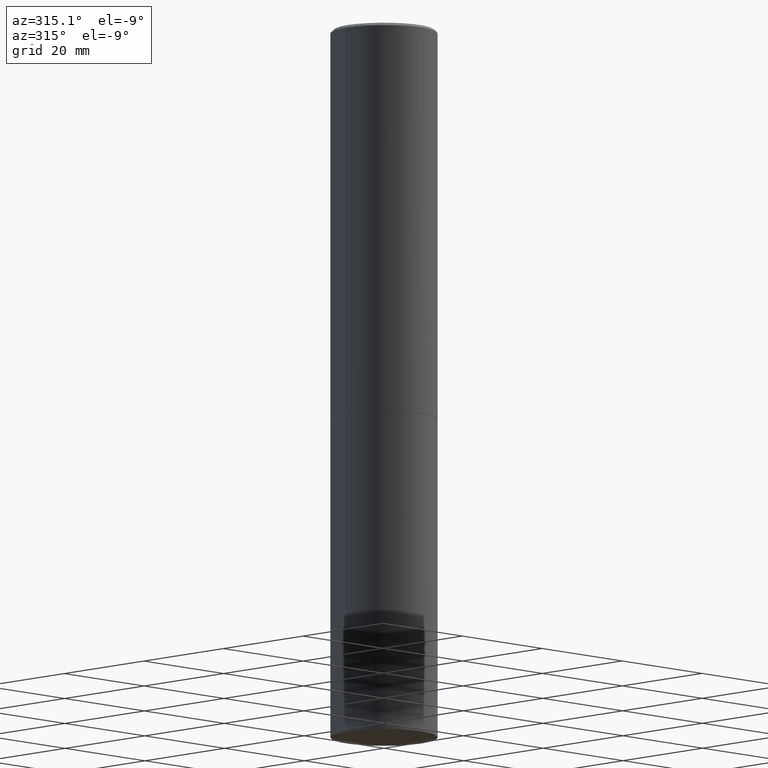
[diagram: clean part render]
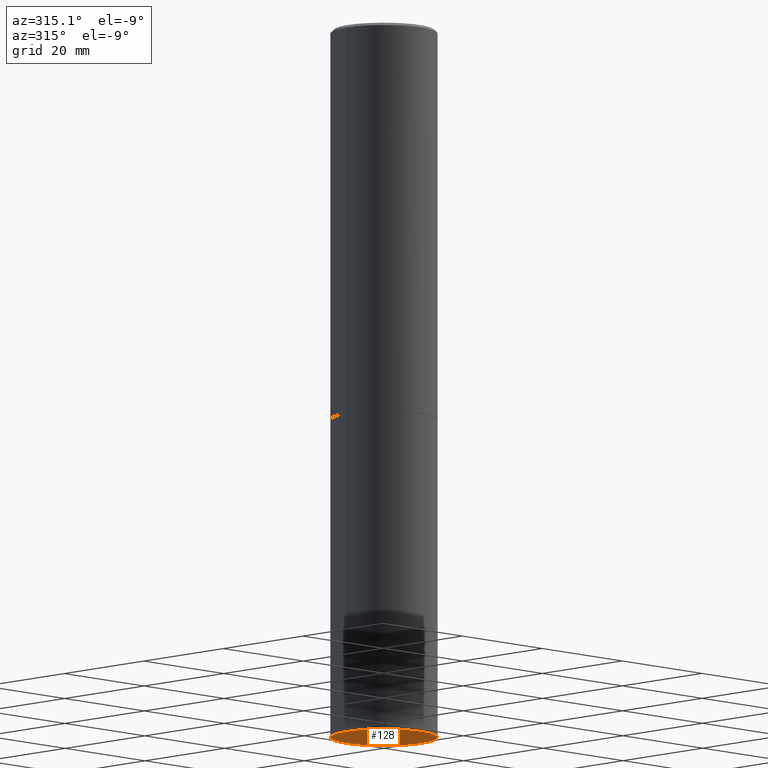
[diagram: same view with one face highlighted and labeled with its STEP entity id]
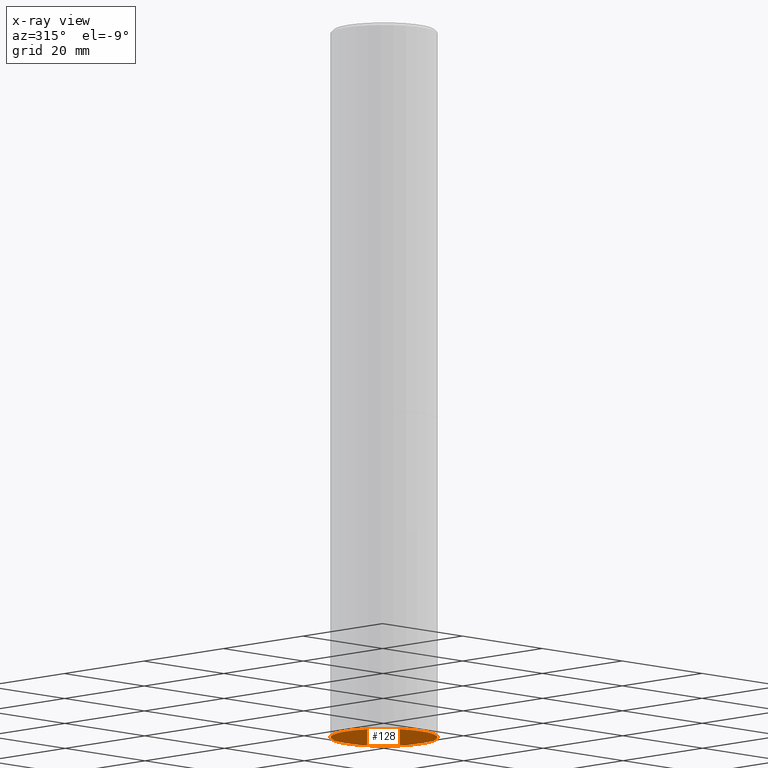
[diagram: x-ray of the same camera — body ghosted, the highlighted face saturated]
A machine part, auxiliary view. The second image highlights one B-rep face of the part: STEP entity #128.
The next image is the same camera in x-ray: the body ghosted, the highlighted face saturated — about 0% of this face is hidden behind the body in this view.
In plain terms, the highlighted planar face has unit normal (0, -0, -1).
Its self-contained STEP definition (entity closure, byte-faithful):
#6 = DIRECTION ( 'NONE',  ( -2.445468806185136597E-29, 3.491481338843145583E-15, 1.000000000000000000 ) ) ;
#10 = DIRECTION ( 'NONE',  ( 2.438088387897960049E-29, -3.491481338843145188E-15, -1.000000000000000000 ) ) ;
#22 = VERTEX_POINT ( 'NONE', #63 ) ;
#35 = AXIS2_PLACEMENT_3D ( 'NONE', #314, #6, #120 ) ;
#39 = EDGE_CURVE ( 'NONE', #22, #301, #59, .T. ) ;
#59 = CIRCLE ( 'NONE', #35, 0.3750000000000000555 ) ;
#63 = CARTESIAN_POINT ( 'NONE',  ( 0.3750000000000000555, -2.007601769834807990E-14, -5.000000000000000000 ) ) ;
#77 = DIRECTION ( 'NONE',  ( -2.445468806185136597E-29, 3.491481338843145583E-15, 1.000000000000000000 ) ) ;
#120 = DIRECTION ( 'NONE',  ( 1.000000000000000000, -6.982962677686266711E-15, 0.000000000000000000 ) ) ;
#123 = EDGE_LOOP ( 'NONE', ( #366, #341 ) ) ;
#128 = ADVANCED_FACE ( 'NONE', ( #243 ), #240, .T. ) ;
#129 = DIRECTION ( 'NONE',  ( -1.000000000000000000, 6.982962677686265922E-15, -4.876176775795935793E-29 ) ) ;
#144 = AXIS2_PLACEMENT_3D ( 'NONE', #326, #77, #300 ) ;
#157 = CIRCLE ( 'NONE', #144, 0.3750000000000000555 ) ;
#188 = AXIS2_PLACEMENT_3D ( 'NONE', #189, #10, #129 ) ;
#189 = CARTESIAN_POINT ( 'NONE',  ( 2.618611004132472290E-15, 0.3749999999999825695, -5.000000000000000888 ) ) ;
#240 = PLANE ( 'NONE',  #188 ) ;
#243 = FACE_OUTER_BOUND ( 'NONE', #123, .T. ) ;
#275 = CARTESIAN_POINT ( 'NONE',  ( -0.3750000000000000555, -1.086495492891681496E-14, -5.000000000000000000 ) ) ;
#300 = DIRECTION ( 'NONE',  ( 1.000000000000000000, -6.982962677686266711E-15, 0.000000000000000000 ) ) ;
#301 = VERTEX_POINT ( 'NONE', #275 ) ;
#314 = CARTESIAN_POINT ( 'NONE',  ( 1.222734403092568523E-28, -1.745740669421572989E-14, -5.000000000000000000 ) ) ;
#326 = CARTESIAN_POINT ( 'NONE',  ( 1.222734403092568523E-28, -1.745740669421572989E-14, -5.000000000000000000 ) ) ;
#330 = EDGE_CURVE ( 'NONE', #301, #22, #157, .T. ) ;
#341 = ORIENTED_EDGE ( 'NONE', *, *, #330, .F. ) ;
#366 = ORIENTED_EDGE ( 'NONE', *, *, #39, .F. ) ;